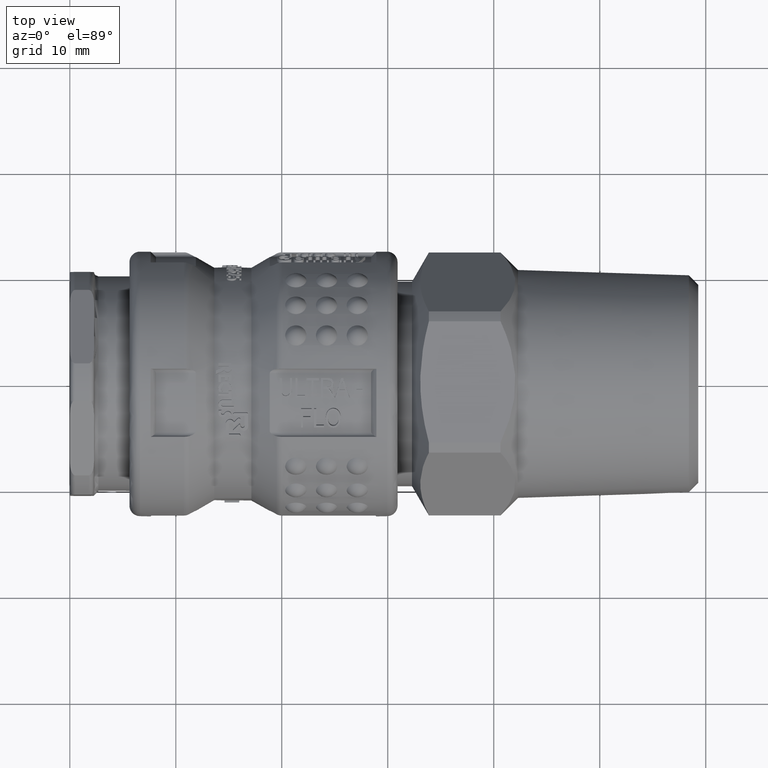
[diagram: clean part render]
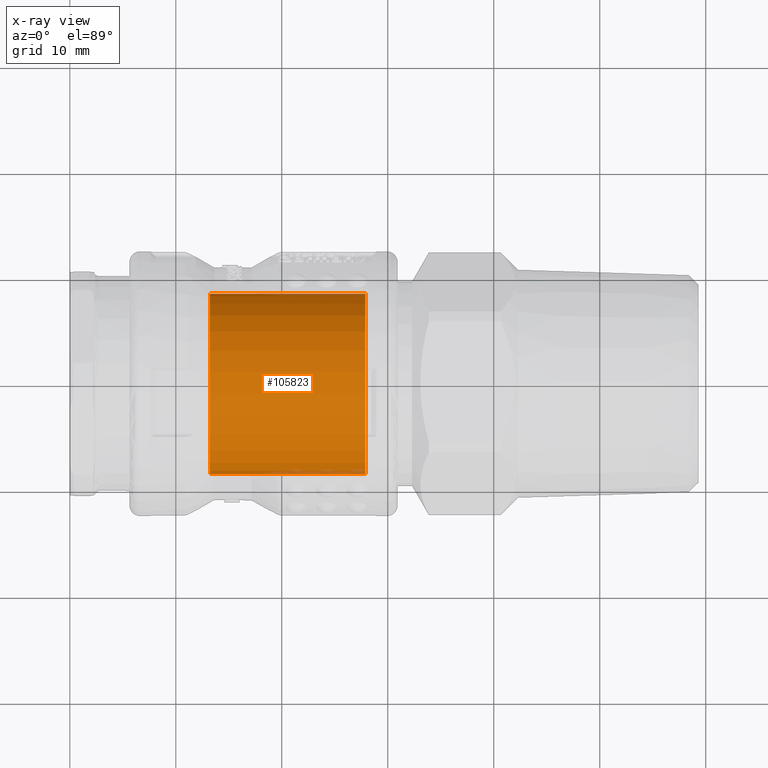
[diagram: x-ray — body ghosted, one internal face saturated and labeled with its STEP entity id]
A machine part, top view, then the same camera in x-ray: the body is ghosted and one INTERNAL B-rep face — a face not visible from any outside direction — is saturated and labeled: STEP entity #105823.
In plain terms, the highlighted cylindrical surface (bore or boss wall) has radius 8.5 mm, axis along (1, 0, 0).
Its self-contained STEP definition (entity closure, byte-faithful):
#103473=CARTESIAN_POINT('',(27.889999999999997,-8.500000000000000,1.040950E-015));
#103474=VERTEX_POINT('',#103473);
#103475=CARTESIAN_POINT('',(27.889999999999997,0.0,0.0));
#103476=DIRECTION('',(-1.0,0.0,0.0));
#103477=DIRECTION('',(0.0,1.0,0.0));
#103478=AXIS2_PLACEMENT_3D('',#103475,#103476,#103477);
#103479=CIRCLE('',#103478,8.500000000000000);
#103480=EDGE_CURVE('',#103474,#103474,#103479,.T.);
#105797=CARTESIAN_POINT('',(13.199999999999999,8.500000000000000,0.0));
#105798=VERTEX_POINT('',#105797);
#105799=CARTESIAN_POINT('',(13.199999999999999,0.0,0.0));
#105800=DIRECTION('',(1.0,0.0,0.0));
#105801=DIRECTION('',(0.0,1.0,0.0));
#105802=AXIS2_PLACEMENT_3D('',#105799,#105800,#105801);
#105803=CIRCLE('',#105802,8.500000000000000);
#105804=EDGE_CURVE('',#105798,#105798,#105803,.T.);
#105812=CARTESIAN_POINT('',(22.349999999999998,0.0,0.0));
#105813=DIRECTION('',(1.0,0.0,0.0));
#105814=DIRECTION('',(0.0,1.0,0.0));
#105815=AXIS2_PLACEMENT_3D('',#105812,#105813,#105814);
#105816=CYLINDRICAL_SURFACE('',#105815,8.500000000000000);
#105817=ORIENTED_EDGE('',*,*,#103480,.T.);
#105818=EDGE_LOOP('',(#105817));
#105819=FACE_OUTER_BOUND('',#105818,.T.);
#105820=ORIENTED_EDGE('',*,*,#105804,.T.);
#105821=EDGE_LOOP('',(#105820));
#105822=FACE_BOUND('',#105821,.T.);
#105823=ADVANCED_FACE('',(#105819,#105822),#105816,.T.);